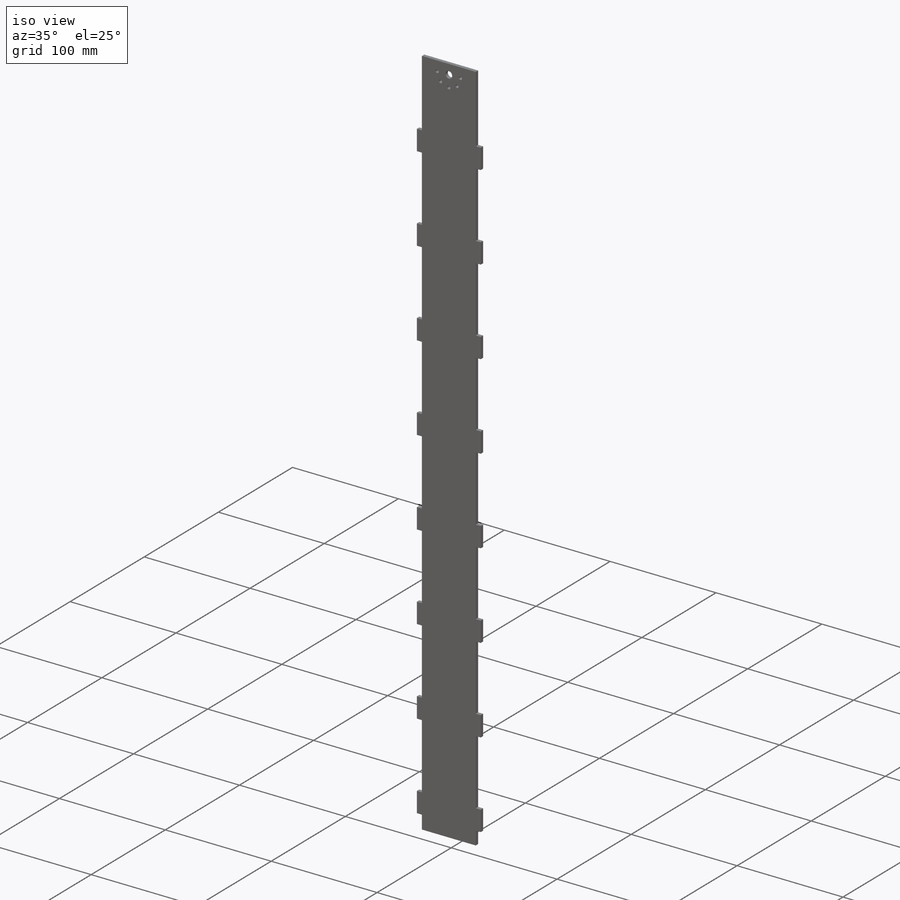
[diagram: iso view]
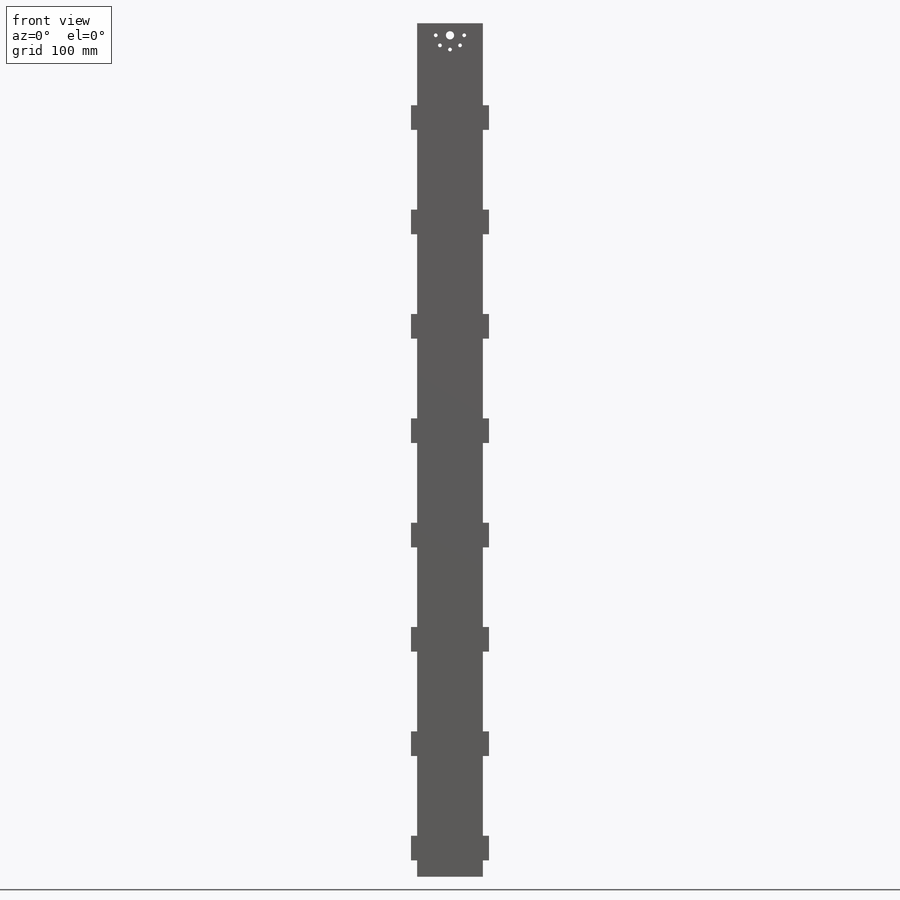
[diagram: front view]
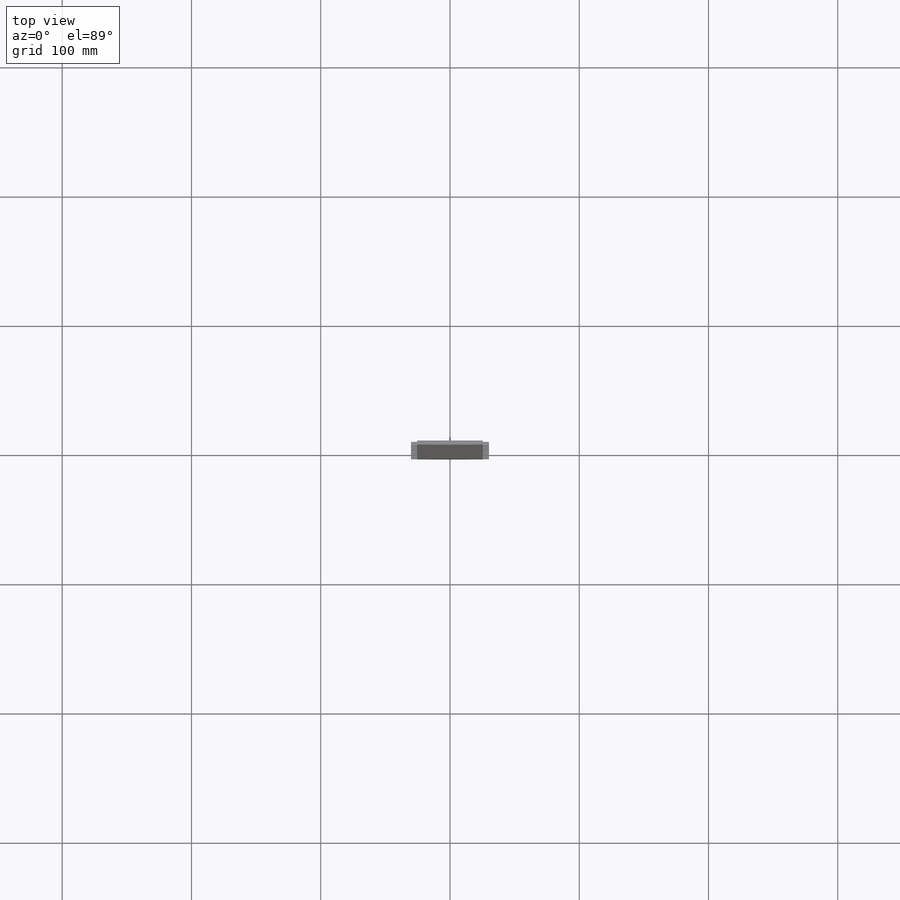
[diagram: top view]
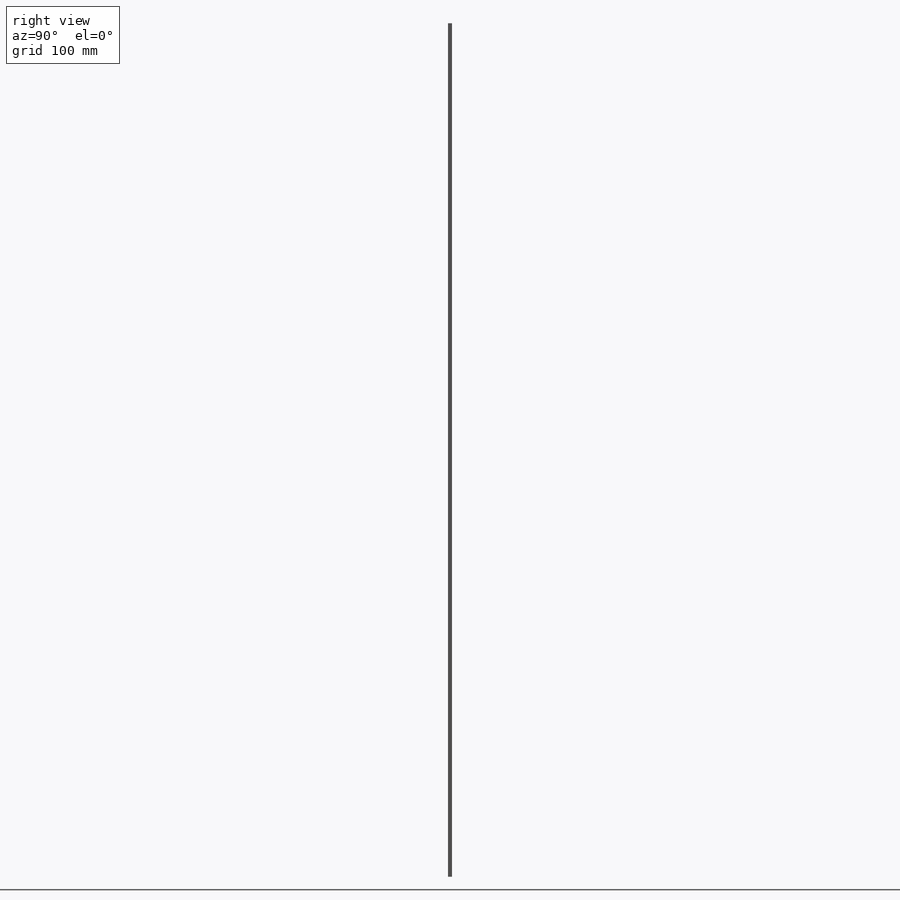
[diagram: right view]
SOLIDWORKS PART (.sldprt)
format: sldprt  version: not decoded by parser v0  size: 323,584 bytes
history: native  units: mm
features: sketch x9, hole x3, extrude x2, material x1, plane x1, mirror x1 (+13 scaffold rows collapsed)
feature tree (30):
  scaffold x13  (default folders/planes/origin — collapsed)
  material  "Teak"
  sketch  "Sketch1"  dims[D1=50.8mm D2=508.0mm]
  extrude  "Boss-Extrude1"  Depth=3.175mm
  hole  "M2.5 Clearance Hole1"  Diameter=2.9mm Depth=3.175mm
  sketch  "Sketch3"
  sketch  "Sketch2"  dims[hole-wizard template sketch: 60 standard entries collapsed; hole parameters kept: c18.Thru Hole Depth=3.175mm]
  hole  "1/4 (0.25) Diameter Hole1"  Diameter=6.35mm Depth=3.175mm
  sketch  "Sketch5"
  sketch  "Sketch4"  dims[hole-wizard template sketch: 60 standard entries collapsed; hole parameters kept: c18.Thru Hole Depth=3.175mm]
  sketch  "Sketch6"
  extrude  "Boss-Extrude2"  Depth=4.7625mm
  sketch  "Sketch7"  dims[D1=8.0 D3=50.0mm D2=1.0 D4=50.0mm]
  plane  "Plane1"
  mirror  "Mirror1"
  hole  "#10 Clearance Hole1"  Diameter=5.1054mm Depth=3.17505mm
  sketch  "Sketch9"
  sketch  "Sketch8"  dims[hole-wizard template sketch: 60 standard entries collapsed; hole parameters kept: c18.Thru Hole Depth=~3.17505mm]
decode coverage: 10 of 15 modeling features carry decoded parameters
note: ~ marks probable driven/reference dimensions
note: suppression state not decoded; provenance and decode notes live in map.json
